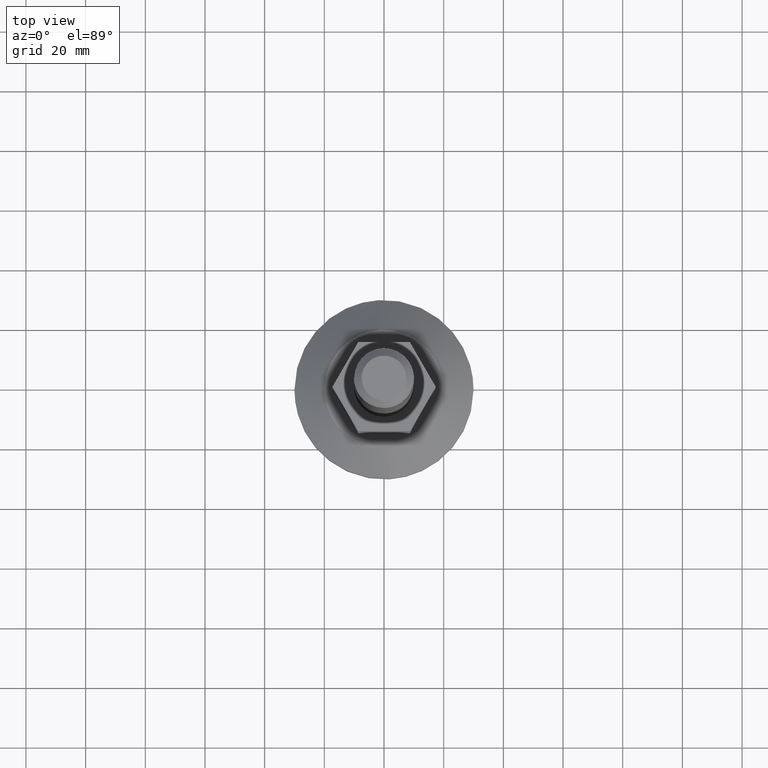
[diagram: clean part render]
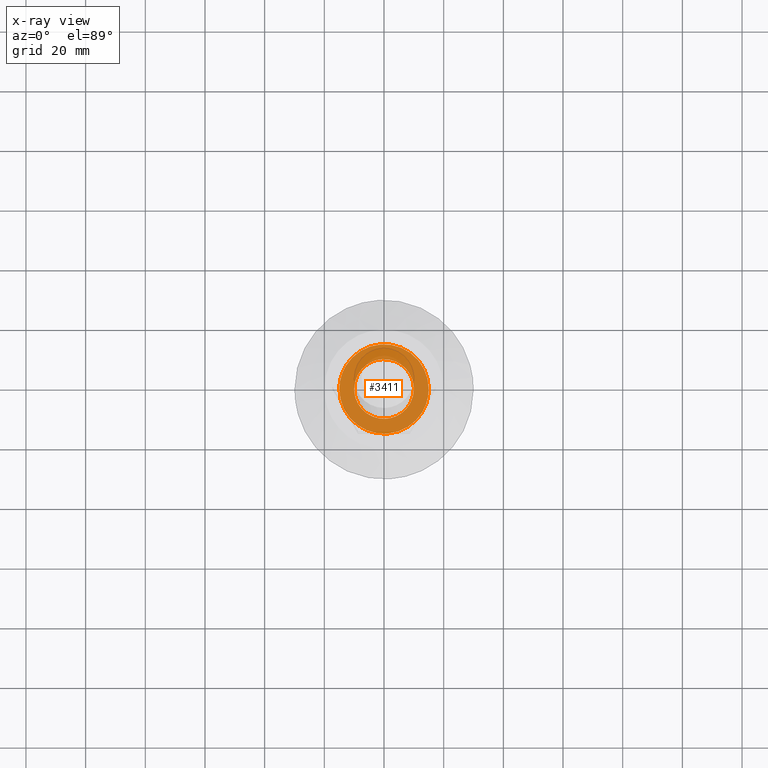
[diagram: x-ray — body ghosted, one internal face saturated and labeled with its STEP entity id]
A machine part, top view, then the same camera in x-ray: the body is ghosted and one INTERNAL B-rep face — a face not visible from any outside direction — is saturated and labeled: STEP entity #3411.
In plain terms, the highlighted face is a freeform B-spline surface patch.
Its self-contained STEP definition (entity closure, byte-faithful):
#3154=CARTESIAN_POINT('',(-14.979491943233780,0.0,17.0));
#3155=VERTEX_POINT('',#3154);
#3156=CARTESIAN_POINT('',(-12.898959870481130,7.615905273689534,17.000000000013280));
#3157=VERTEX_POINT('',#3156);
#3158=CARTESIAN_POINT('',(-14.979491943233780,0.0,17.0));
#3159=CARTESIAN_POINT('',(-14.979491943243678,4.092135117474840,17.000000000006644));
#3160=CARTESIAN_POINT('',(-12.898959870481137,7.615905273689533,17.000000000013287));
#3168=(BOUNDED_CURVE()B_SPLINE_CURVE(2,(#3158,#3159,#3160),.UNSPECIFIED.,.F.,.U.)B_SPLINE_CURVE_WITH_KNOTS((3,3),(0.500000000000000,0.586766463434922),.UNSPECIFIED.)CURVE()GEOMETRIC_REPRESENTATION_ITEM()RATIONAL_B_SPLINE_CURVE((1.0,0.898346764957944,0.867254263526433))REPRESENTATION_ITEM(''));
#3169=EDGE_CURVE('',#3155,#3157,#3168,.T.);
#3171=CARTESIAN_POINT('',(12.898959870481130,-7.615905273689534,17.000000000013280));
#3172=VERTEX_POINT('',#3171);
#3173=CARTESIAN_POINT('',(12.898959870481130,-7.615905273689534,17.000000000013280));
#3174=CARTESIAN_POINT('',(12.175244296529749,-8.842887985120836,17.000000000013070));
#3175=CARTESIAN_POINT('',(10.663175663858651,-10.726332135115481,17.000000000012751));
#3176=CARTESIAN_POINT('',(7.826653967461042,-12.907022902897340,17.000000000011632));
#3177=CARTESIAN_POINT('',(5.279435648333944,-14.110573406456901,17.000000000010690));
#3178=CARTESIAN_POINT('',(2.617312316923651,-14.812937751416960,17.000000000009582));
#3179=CARTESIAN_POINT('',(-0.127498383220047,-15.088871258835031,17.000000000008519));
#3180=CARTESIAN_POINT('',(-2.826155269077437,-14.794178562904239,17.000000000007070));
#3181=CARTESIAN_POINT('',(-5.367976353382359,-14.043645942002151,17.000000000006260));
#3182=CARTESIAN_POINT('',(-7.359459739252563,-13.118793631140260,17.000000000004469));
#3183=CARTESIAN_POINT('',(-9.516986929130306,-11.665817086963830,17.000000000003919));
#3184=CARTESIAN_POINT('',(-11.249237199796950,-9.999771194882701,17.000000000002601));
#3185=CARTESIAN_POINT('',(-12.886369951096601,-7.786144839053564,17.000000000001879));
#3186=CARTESIAN_POINT('',(-14.007359633413371,-5.543699323774255,17.000000000001180));
#3187=CARTESIAN_POINT('',(-14.797362778416410,-2.797868509781555,17.000000000000171));
#3188=CARTESIAN_POINT('',(-14.979635282483899,-1.017426810044441,17.000000000000700));
#3189=CARTESIAN_POINT('',(-14.979491943233780,0.0,17.0));
#3190=B_SPLINE_CURVE_WITH_KNOTS('',3,(#3173,#3174,#3175,#3176,#3177,#3178,#3179,#3180,#3181,#3182,#3183,#3184,#3185,#3186,#3187,#3188,#3189),.UNSPECIFIED.,.F.,.U.,(4,1,1,1,1,1,1,1,1,1,1,1,1,1,4),(0.000000506574445,4.273322639554969,7.173101684308136,10.683362417637399,12.667449066171770,15.414592899220271,18.924544285228041,20.756039833118319,23.350599987566270,25.487262493634400,28.539654312002391,30.523691096809440,33.728755169849919,36.018034354341417,39.070297361399383),.UNSPECIFIED.);
#3191=EDGE_CURVE('',#3172,#3155,#3190,.T.);
#3228=CARTESIAN_POINT('',(14.979491943233780,0.0,17.0));
#3229=VERTEX_POINT('',#3228);
#3230=CARTESIAN_POINT('',(-12.898959870481130,7.615905273689534,17.000000000013280));
#3231=CARTESIAN_POINT('',(-12.278478307713820,8.667477566698977,17.000000000013060));
#3232=CARTESIAN_POINT('',(-11.246960357084991,10.007817564027871,17.000000000012879));
#3233=CARTESIAN_POINT('',(-9.192003936943557,11.911157259119170,17.000000000012200));
#3234=CARTESIAN_POINT('',(-7.276718622938969,13.191154419622469,17.000000000011472));
#3235=CARTESIAN_POINT('',(-4.792963643389547,14.258024076781391,17.000000000010509));
#3236=CARTESIAN_POINT('',(-2.515788655761989,14.834283022923859,17.000000000009571));
#3237=CARTESIAN_POINT('',(-0.278974977044662,15.024394167713270,17.000000000008502));
#3238=CARTESIAN_POINT('',(1.960410210297163,14.906220385036709,17.000000000007610));
#3239=CARTESIAN_POINT('',(4.662670951835430,14.357514159062321,17.000000000006569));
#3240=CARTESIAN_POINT('',(7.667264296201216,13.036019807000960,17.000000000004128));
#3241=CARTESIAN_POINT('',(10.267772959096931,11.042943687738569,17.000000000004359));
#3242=CARTESIAN_POINT('',(12.048720420515510,9.005092801997563,17.000000000002430));
#3243=CARTESIAN_POINT('',(13.404153865648681,6.844989881313640,17.000000000001439));
#3244=CARTESIAN_POINT('',(14.615690165166590,3.916815883226527,17.000000000000728));
#3245=CARTESIAN_POINT('',(14.980168785281739,1.475350201762939,17.000000000000149));
#3246=CARTESIAN_POINT('',(14.979491943233780,0.0,17.0));
#3247=B_SPLINE_CURVE_WITH_KNOTS('',3,(#3230,#3231,#3232,#3233,#3234,#3235,#3236,#3237,#3238,#3239,#3240,#3241,#3242,#3243,#3244,#3245,#3246),.UNSPECIFIED.,.F.,.U.,(4,1,1,1,1,1,1,1,1,1,1,1,1,1,4),(0.000000506622889,3.662842432282382,5.036415789167783,8.394030679371358,10.530710096392790,13.125298229103620,15.414592899249721,17.245733969009908,19.840284439672171,23.655796093431409,27.013448152225809,29.607977062952120,31.744640608747972,34.644475208738491,39.070297361399163),.UNSPECIFIED.);
#3248=EDGE_CURVE('',#3157,#3229,#3247,.T.);
#3256=CARTESIAN_POINT('',(14.979491943233780,0.0,17.0));
#3257=CARTESIAN_POINT('',(14.979491943243678,-4.092135117474840,17.000000000006644));
#3258=CARTESIAN_POINT('',(12.898959870481137,-7.615905273689533,17.000000000013287));
#3266=(BOUNDED_CURVE()B_SPLINE_CURVE(2,(#3256,#3257,#3258),.UNSPECIFIED.,.F.,.U.)B_SPLINE_CURVE_WITH_KNOTS((3,3),(0.0,0.086766463434922),.UNSPECIFIED.)CURVE()GEOMETRIC_REPRESENTATION_ITEM()RATIONAL_B_SPLINE_CURVE((1.0,0.898346764957944,0.867254263526433))REPRESENTATION_ITEM(''));
#3267=EDGE_CURVE('',#3229,#3172,#3266,.T.);
#3291=CARTESIAN_POINT('',(0.610485395824550,-9.981347984189556,17.000000000000131));
#3292=VERTEX_POINT('',#3291);
#3298=CARTESIAN_POINT('',(-10.0,0.0,17.000000000000249));
#3299=VERTEX_POINT('',#3298);
#3300=CARTESIAN_POINT('',(0.610485395824550,-9.981347984189556,17.000000000000124));
#3301=CARTESIAN_POINT('',(0.305527633224546,-10.000000000000002,17.000000000000252));
#3302=CARTESIAN_POINT('',(0.0,-10.0,17.000000000000249));
#3303=CARTESIAN_POINT('',(-10.000000000000002,-10.000000000000002,17.000000000000256));
#3304=CARTESIAN_POINT('',(-10.0,0.0,17.000000000000249));
#3312=(BOUNDED_CURVE()B_SPLINE_CURVE(2,(#3300,#3301,#3302,#3303,#3304),.UNSPECIFIED.,.F.,.U.)B_SPLINE_CURVE_WITH_KNOTS((3,2,3),(0.239332962233740,0.250000000000000,0.500000000000000),.UNSPECIFIED.)CURVE()GEOMETRIC_REPRESENTATION_ITEM()RATIONAL_B_SPLINE_CURVE((0.976072041655567,0.987502787893742,1.0,0.707106781186548,1.0))REPRESENTATION_ITEM(''));
#3313=EDGE_CURVE('',#3292,#3299,#3312,.T.);
#3315=CARTESIAN_POINT('',(-0.610485395824550,9.981347984189556,17.000000000000131));
#3316=VERTEX_POINT('',#3315);
#3317=CARTESIAN_POINT('',(-10.0,0.0,17.000000000000249));
#3318=CARTESIAN_POINT('',(-10.0,9.407060668607512,17.000000000000252));
#3319=CARTESIAN_POINT('',(-0.610485395824553,9.981347984189556,17.000000000000249));
#3327=(BOUNDED_CURVE()B_SPLINE_CURVE(2,(#3317,#3318,#3319),.UNSPECIFIED.,.F.,.U.)B_SPLINE_CURVE_WITH_KNOTS((3,3),(0.500000000000000,0.739332962233740),.UNSPECIFIED.)CURVE()GEOMETRIC_REPRESENTATION_ITEM()RATIONAL_B_SPLINE_CURVE((1.0,0.719603993292806,0.976072041655567))REPRESENTATION_ITEM(''));
#3328=EDGE_CURVE('',#3299,#3316,#3327,.T.);
#3360=CARTESIAN_POINT('',(10.0,0.0,17.000000000000249));
#3361=VERTEX_POINT('',#3360);
#3362=CARTESIAN_POINT('',(-0.610485395824550,9.981347984189556,17.000000000000124));
#3363=CARTESIAN_POINT('',(-0.305527633224548,9.999999999999998,17.000000000000256));
#3364=CARTESIAN_POINT('',(0.0,10.0,17.000000000000249));
#3365=CARTESIAN_POINT('',(10.000000000000002,10.000000000000002,17.000000000000256));
#3366=CARTESIAN_POINT('',(10.0,0.0,17.000000000000249));
#3374=(BOUNDED_CURVE()B_SPLINE_CURVE(2,(#3362,#3363,#3364,#3365,#3366),.UNSPECIFIED.,.F.,.U.)B_SPLINE_CURVE_WITH_KNOTS((3,2,3),(0.739332962233740,0.750000000000000,1.0),.UNSPECIFIED.)CURVE()GEOMETRIC_REPRESENTATION_ITEM()RATIONAL_B_SPLINE_CURVE((0.976072041655567,0.987502787893742,1.0,0.707106781186548,1.0))REPRESENTATION_ITEM(''));
#3375=EDGE_CURVE('',#3316,#3361,#3374,.T.);
#3377=CARTESIAN_POINT('',(10.0,0.0,17.000000000000249));
#3378=CARTESIAN_POINT('',(10.000000000000002,-9.407060668607517,17.000000000000256));
#3379=CARTESIAN_POINT('',(0.610485395824550,-9.981347984189558,17.000000000000259));
#3387=(BOUNDED_CURVE()B_SPLINE_CURVE(2,(#3377,#3378,#3379),.UNSPECIFIED.,.F.,.U.)B_SPLINE_CURVE_WITH_KNOTS((3,3),(0.0,0.239332962233740),.UNSPECIFIED.)CURVE()GEOMETRIC_REPRESENTATION_ITEM()RATIONAL_B_SPLINE_CURVE((1.0,0.719603993292806,0.976072041655567))REPRESENTATION_ITEM(''));
#3388=EDGE_CURVE('',#3361,#3292,#3387,.T.);
#3394=CARTESIAN_POINT('',(-16.475943130296510,-16.475662270621449,17.0));
#3395=CARTESIAN_POINT('',(16.475943933859082,-16.475662270621449,17.0));
#3396=CARTESIAN_POINT('',(-16.475943130296510,16.475661199204701,17.0));
#3397=CARTESIAN_POINT('',(16.475943933859082,16.475661199204701,17.0));
#3398=B_SPLINE_SURFACE_WITH_KNOTS('',1,1,((#3394,#3396),(#3395,#3397)),.UNSPECIFIED.,.F.,.F.,.U.,(2,2),(2,2),(0.0,32.951887064155592),(0.0,32.951323469826150),.UNSPECIFIED.);
#3399=ORIENTED_EDGE('',*,*,#3267,.T.);
#3400=ORIENTED_EDGE('',*,*,#3191,.T.);
#3401=ORIENTED_EDGE('',*,*,#3169,.T.);
#3402=ORIENTED_EDGE('',*,*,#3248,.T.);
#3403=EDGE_LOOP('',(#3399,#3400,#3401,#3402));
#3404=FACE_OUTER_BOUND('',#3403,.T.);
#3405=ORIENTED_EDGE('',*,*,#3328,.F.);
#3406=ORIENTED_EDGE('',*,*,#3313,.F.);
#3407=ORIENTED_EDGE('',*,*,#3388,.F.);
#3408=ORIENTED_EDGE('',*,*,#3375,.F.);
#3409=EDGE_LOOP('',(#3405,#3406,#3407,#3408));
#3410=FACE_BOUND('',#3409,.T.);
#3411=ADVANCED_FACE('',(#3404,#3410),#3398,.F.);